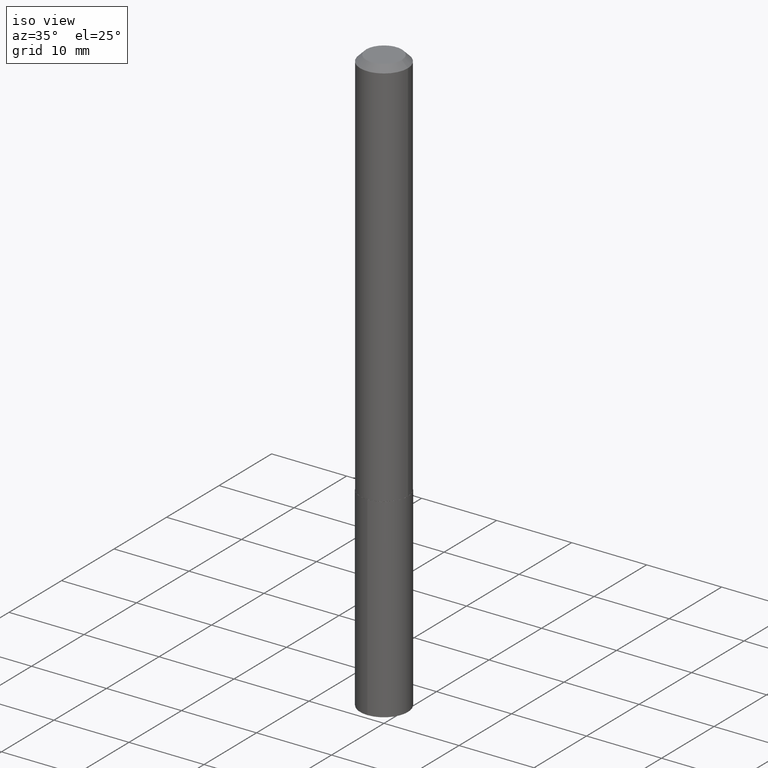
[diagram: clean part render]
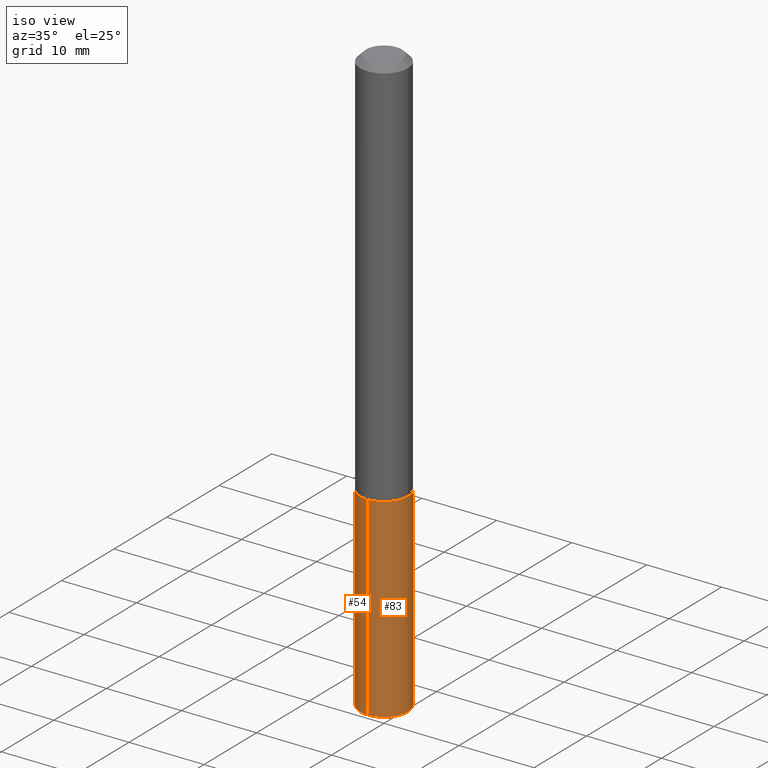
[diagram: same view with one multi-face feature highlighted, each face labeled with its STEP entity id]
A machine part, iso view. The highlighted faces form ONE feature: a constant-radius fillet chain: 2 tangent blend faces with common blend radius 3.175 mm. The faces share edges in the B-rep.
Their STEP definitions:
[1] entity #83 (Cylinder):
#3 = VECTOR ( 'NONE', #103, 39.37007874015748143 ) ;
#25 = CIRCLE ( 'NONE', #246, 0.1250000000000000000 ) ;
#29 = VERTEX_POINT ( 'NONE', #266 ) ;
#34 = LINE ( 'NONE', #154, #3 ) ;
#36 = EDGE_LOOP ( 'NONE', ( #75, #307, #109, #316 ) ) ;
#53 = CARTESIAN_POINT ( 'NONE',  ( 5.043779412756844791E-29, -7.201180261363988578E-15, -2.062500000000000000 ) ) ;
#57 = DIRECTION ( 'NONE',  ( -6.982962677686265922E-15, -1.000000000000000000, 4.370956789862821150E-15 ) ) ;
#74 = AXIS2_PLACEMENT_3D ( 'NONE', #53, #87, #172 ) ;
#75 = ORIENTED_EDGE ( 'NONE', *, *, #146, .T. ) ;
#78 = CARTESIAN_POINT ( 'NONE',  ( 7.548781518313018296E-29, -1.076887075257701852E-14, -3.085587651390127029 ) ) ;
#83 = ADVANCED_FACE ( 'NONE', ( #294 ), #265, .T. ) ;
#86 = VERTEX_POINT ( 'NONE', #269 ) ;
#87 = DIRECTION ( 'NONE',  ( -2.448472623193610432E-29, 3.487179701920364384E-15, 1.000000000000000000 ) ) ;
#99 = VERTEX_POINT ( 'NONE', #239 ) ;
#102 = CIRCLE ( 'NONE', #74, 0.1250000000000000000 ) ;
#103 = DIRECTION ( 'NONE',  ( -2.448472623193610432E-29, 3.487179701920364384E-15, 1.000000000000000000 ) ) ;
#109 = ORIENTED_EDGE ( 'NONE', *, *, #173, .F. ) ;
#113 = CARTESIAN_POINT ( 'NONE',  ( 5.043779412756844791E-29, -7.201180261363988578E-15, -2.062500000000000000 ) ) ;
#143 = DIRECTION ( 'NONE',  ( -2.448472623193610432E-29, 3.487179701920364384E-15, 1.000000000000000000 ) ) ;
#146 = EDGE_CURVE ( 'NONE', #29, #86, #25, .T. ) ;
#154 = CARTESIAN_POINT ( 'NONE',  ( -8.728703347107327531E-16, -0.1250000000000072164, -2.062499999999999556 ) ) ;
#172 = DIRECTION ( 'NONE',  ( -6.982962677686265922E-15, -1.000000000000000000, 4.370956789862821150E-15 ) ) ;
#173 = EDGE_CURVE ( 'NONE', #99, #285, #102, .T. ) ;
#178 = EDGE_CURVE ( 'NONE', #86, #285, #209, .T. ) ;
#202 = AXIS2_PLACEMENT_3D ( 'NONE', #113, #288, #208 ) ;
#208 = DIRECTION ( 'NONE',  ( -6.982962677686265922E-15, -1.000000000000000000, 4.370956789862821150E-15 ) ) ;
#209 = LINE ( 'NONE', #293, #328 ) ;
#213 = EDGE_CURVE ( 'NONE', #29, #99, #34, .T. ) ;
#239 = CARTESIAN_POINT ( 'NONE',  ( -8.728703347107327531E-16, -0.1250000000000072164, -2.062499999999999556 ) ) ;
#246 = AXIS2_PLACEMENT_3D ( 'NONE', #78, #143, #57 ) ;
#265 = CYLINDRICAL_SURFACE ( 'NONE', #202, 0.1250000000000000000 ) ;
#266 = CARTESIAN_POINT ( 'NONE',  ( -8.728703347107075096E-16, -0.1250000000000107414, -3.085587651390126585 ) ) ;
#269 = CARTESIAN_POINT ( 'NONE',  ( 8.881784197002003713E-16, 0.1249999999999891753, -3.085587651390127473 ) ) ;
#285 = VERTEX_POINT ( 'NONE', #341 ) ;
#288 = DIRECTION ( 'NONE',  ( -2.448472623193610432E-29, 3.487179701920364384E-15, 1.000000000000000000 ) ) ;
#293 = CARTESIAN_POINT ( 'NONE',  ( 8.881784197001755222E-16, 0.1249999999999927974, -2.062500000000000888 ) ) ;
#294 = FACE_OUTER_BOUND ( 'NONE', #36, .T. ) ;
#296 = DIRECTION ( 'NONE',  ( -2.448472623193610432E-29, 3.487179701920364384E-15, 1.000000000000000000 ) ) ;
#307 = ORIENTED_EDGE ( 'NONE', *, *, #178, .T. ) ;
#316 = ORIENTED_EDGE ( 'NONE', *, *, #213, .F. ) ;
#328 = VECTOR ( 'NONE', #296, 39.37007874015748143 ) ;
#341 = CARTESIAN_POINT ( 'NONE',  ( 8.881784197002007658E-16, 0.1249999999999927974, -2.062500000000000888 ) ) ;
[2] entity #54 (Cylinder):
#3 = VECTOR ( 'NONE', #103, 39.37007874015748143 ) ;
#5 = CARTESIAN_POINT ( 'NONE',  ( 5.043779412756844791E-29, -7.201180261363988578E-15, -2.062500000000000000 ) ) ;
#8 = EDGE_CURVE ( 'NONE', #86, #29, #30, .T. ) ;
#13 = EDGE_LOOP ( 'NONE', ( #232, #377, #147, #94 ) ) ;
#29 = VERTEX_POINT ( 'NONE', #266 ) ;
#30 = CIRCLE ( 'NONE', #290, 0.1250000000000000000 ) ;
#34 = LINE ( 'NONE', #154, #3 ) ;
#44 = DIRECTION ( 'NONE',  ( -6.982962677686265922E-15, -1.000000000000000000, 4.370956789862821150E-15 ) ) ;
#54 = ADVANCED_FACE ( 'NONE', ( #238 ), #58, .T. ) ;
#58 = CYLINDRICAL_SURFACE ( 'NONE', #236, 0.1250000000000000000 ) ;
#86 = VERTEX_POINT ( 'NONE', #269 ) ;
#94 = ORIENTED_EDGE ( 'NONE', *, *, #370, .F. ) ;
#95 = DIRECTION ( 'NONE',  ( -6.982962677686265922E-15, -1.000000000000000000, 4.370956789862821150E-15 ) ) ;
#99 = VERTEX_POINT ( 'NONE', #239 ) ;
#103 = DIRECTION ( 'NONE',  ( -2.448472623193610432E-29, 3.487179701920364384E-15, 1.000000000000000000 ) ) ;
#107 = DIRECTION ( 'NONE',  ( -6.982962677686265922E-15, -1.000000000000000000, 4.370956789862821150E-15 ) ) ;
#127 = AXIS2_PLACEMENT_3D ( 'NONE', #5, #272, #95 ) ;
#138 = DIRECTION ( 'NONE',  ( -2.448472623193610432E-29, 3.487179701920364384E-15, 1.000000000000000000 ) ) ;
#147 = ORIENTED_EDGE ( 'NONE', *, *, #213, .T. ) ;
#154 = CARTESIAN_POINT ( 'NONE',  ( -8.728703347107327531E-16, -0.1250000000000072164, -2.062499999999999556 ) ) ;
#178 = EDGE_CURVE ( 'NONE', #86, #285, #209, .T. ) ;
#209 = LINE ( 'NONE', #293, #328 ) ;
#213 = EDGE_CURVE ( 'NONE', #29, #99, #34, .T. ) ;
#232 = ORIENTED_EDGE ( 'NONE', *, *, #178, .F. ) ;
#236 = AXIS2_PLACEMENT_3D ( 'NONE', #355, #138, #107 ) ;
#238 = FACE_OUTER_BOUND ( 'NONE', #13, .T. ) ;
#239 = CARTESIAN_POINT ( 'NONE',  ( -8.728703347107327531E-16, -0.1250000000000072164, -2.062499999999999556 ) ) ;
#266 = CARTESIAN_POINT ( 'NONE',  ( -8.728703347107075096E-16, -0.1250000000000107414, -3.085587651390126585 ) ) ;
#269 = CARTESIAN_POINT ( 'NONE',  ( 8.881784197002003713E-16, 0.1249999999999891753, -3.085587651390127473 ) ) ;
#272 = DIRECTION ( 'NONE',  ( -2.448472623193610432E-29, 3.487179701920364384E-15, 1.000000000000000000 ) ) ;
#285 = VERTEX_POINT ( 'NONE', #341 ) ;
#289 = CIRCLE ( 'NONE', #127, 0.1250000000000000000 ) ;
#290 = AXIS2_PLACEMENT_3D ( 'NONE', #359, #336, #44 ) ;
#293 = CARTESIAN_POINT ( 'NONE',  ( 8.881784197001755222E-16, 0.1249999999999927974, -2.062500000000000888 ) ) ;
#296 = DIRECTION ( 'NONE',  ( -2.448472623193610432E-29, 3.487179701920364384E-15, 1.000000000000000000 ) ) ;
#328 = VECTOR ( 'NONE', #296, 39.37007874015748143 ) ;
#336 = DIRECTION ( 'NONE',  ( -2.448472623193610432E-29, 3.487179701920364384E-15, 1.000000000000000000 ) ) ;
#341 = CARTESIAN_POINT ( 'NONE',  ( 8.881784197002007658E-16, 0.1249999999999927974, -2.062500000000000888 ) ) ;
#355 = CARTESIAN_POINT ( 'NONE',  ( 5.043779412756844791E-29, -7.201180261363988578E-15, -2.062500000000000000 ) ) ;
#359 = CARTESIAN_POINT ( 'NONE',  ( 7.548781518313018296E-29, -1.076887075257701852E-14, -3.085587651390127029 ) ) ;
#370 = EDGE_CURVE ( 'NONE', #285, #99, #289, .T. ) ;
#377 = ORIENTED_EDGE ( 'NONE', *, *, #8, .T. ) ;